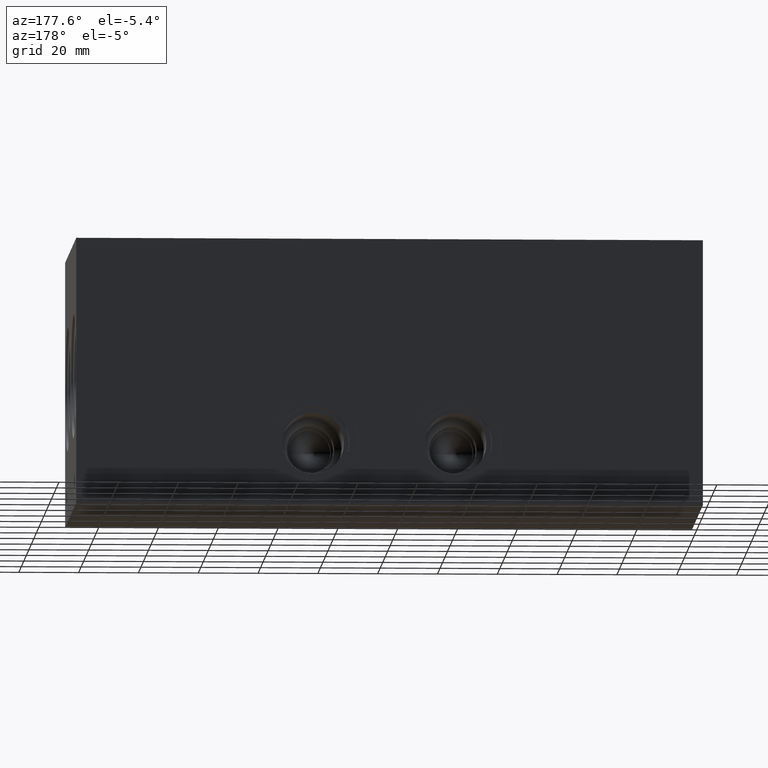
[diagram: clean part render]
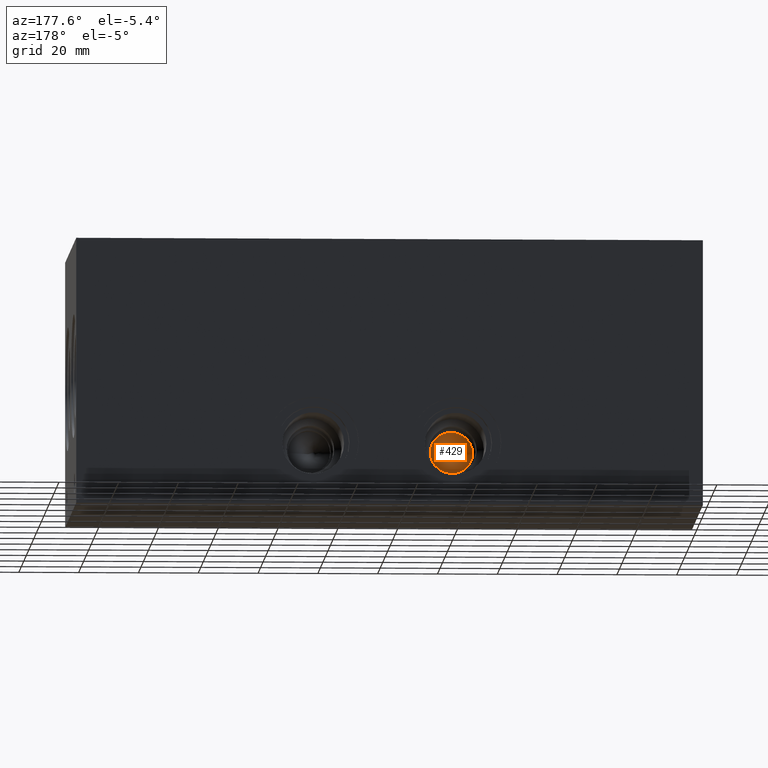
[diagram: same view with one face highlighted and labeled with its STEP entity id]
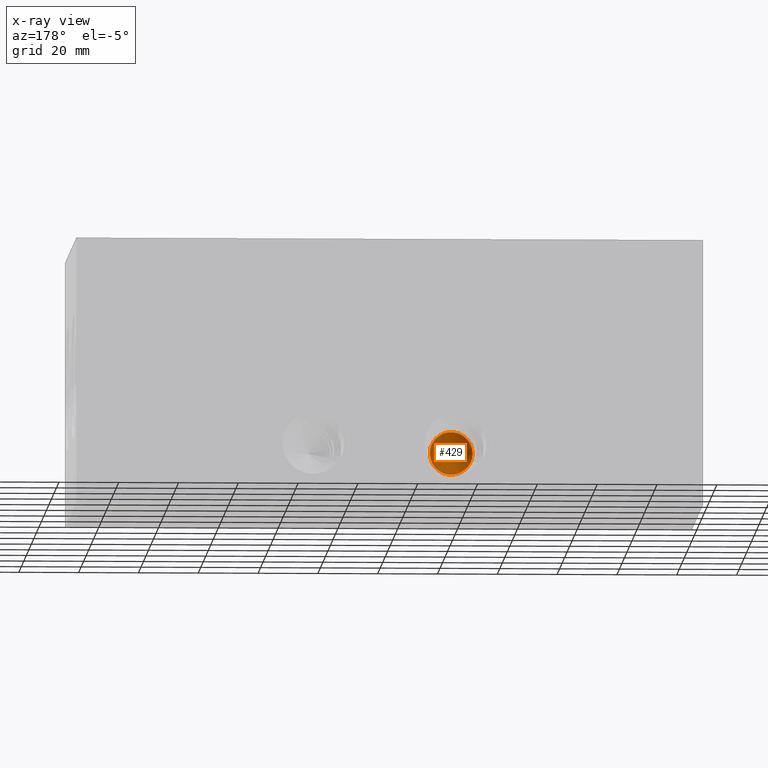
[diagram: x-ray of the same camera — body ghosted, the highlighted face saturated]
A machine part, auxiliary view. The second image highlights one B-rep face of the part: STEP entity #429.
The next image is the same camera in x-ray: the body ghosted, the highlighted face saturated — about 2% of this face is hidden behind the body in this view.
In plain terms, the highlighted conical surface has half-angle 60 deg.
Its self-contained STEP definition (entity closure, byte-faithful):
#413=CARTESIAN_POINT('',(82.550000000000011,48.126343900000002,20.650200000000002));
#414=DIRECTION('',(0.0,1.0,0.0));
#415=DIRECTION('',(1.0,0.0,0.0));
#416=AXIS2_PLACEMENT_3D('',#413,#414,#415);
#417=CONICAL_SURFACE('',#416,3.575049999999997,59.999999757995262);
#418=CARTESIAN_POINT('',(89.700100000000006,50.190400000000004,20.650200000000002));
#419=VERTEX_POINT('',#418);
#420=CARTESIAN_POINT('',(82.550000000000011,50.190400000000004,20.650200000000002));
#421=DIRECTION('',(0.0,1.0,0.0));
#422=DIRECTION('',(1.0,0.0,0.0));
#423=AXIS2_PLACEMENT_3D('',#420,#421,#422);
#424=CIRCLE('',#423,7.150099999999995);
#425=EDGE_CURVE('',#419,#419,#424,.T.);
#426=ORIENTED_EDGE('',*,*,#425,.T.);
#427=EDGE_LOOP('',(#426));
#428=FACE_OUTER_BOUND('',#427,.T.);
#429=ADVANCED_FACE('',(#428),#417,.F.);